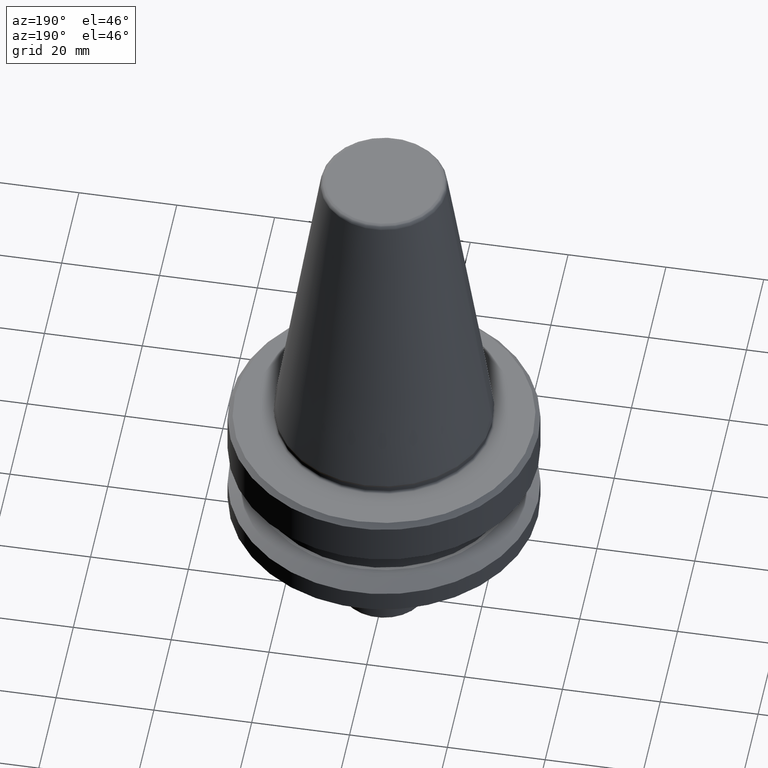
[diagram: clean part render]
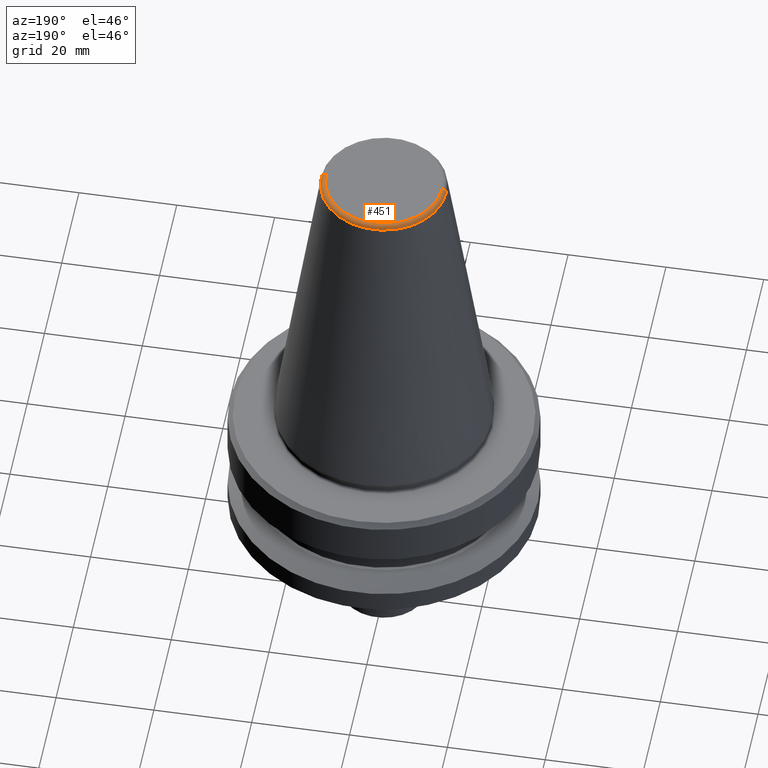
[diagram: same view with one face highlighted and labeled with its STEP entity id]
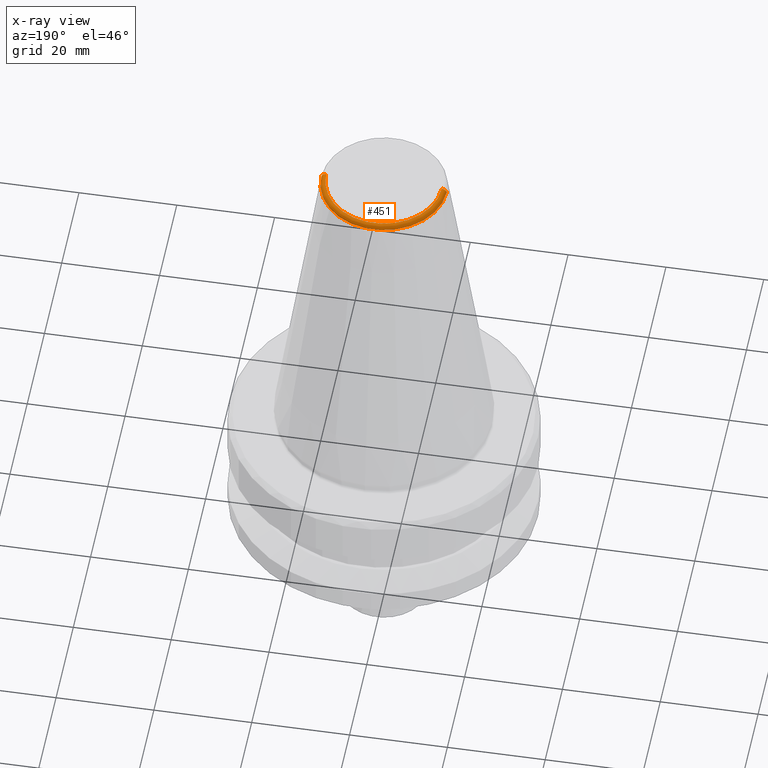
[diagram: x-ray of the same camera — body ghosted, the highlighted face saturated]
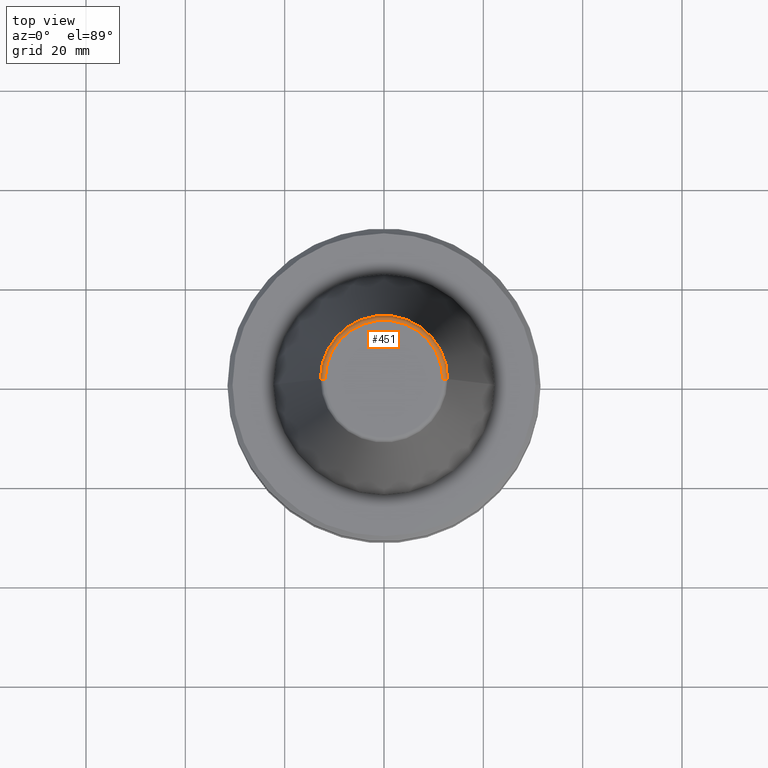
[diagram: same view with one face highlighted and labeled with its STEP entity id]
A machine part, auxiliary view. The second image highlights one B-rep face of the part: STEP entity #451.
The next image is the same camera in x-ray: the body ghosted, the highlighted face saturated — about 0% of this face is hidden behind the body in this view.
A second angle (top view) of the same face is appended — the face is thin or edge-on in the first view.
In plain terms, the highlighted toroidal blend (fillet) surface has major radius 11.8227 mm and minor (blend) radius 1 mm.
Its self-contained STEP definition (entity closure, byte-faithful):
#30 = VERTEX_POINT ( 'NONE', #804 ) ;
#38 = ORIENTED_EDGE ( 'NONE', *, *, #589, .T. ) ;
#70 = CIRCLE ( 'NONE', #895, 0.9999999999999696900 ) ;
#100 = DIRECTION ( 'NONE',  ( -0.0000000000000000000, -0.0000000000000000000, 1.000000000000000000 ) ) ;
#131 = DIRECTION ( 'NONE',  ( 1.000000000000000000, 0.0000000000000000000, 0.0000000000000000000 ) ) ;
#155 = ORIENTED_EDGE ( 'NONE', *, *, #164, .T. ) ;
#162 = CARTESIAN_POINT ( 'NONE',  ( 12.81220206925736900, 2.145409868259749100E-015, -0.8556918111122247000 ) ) ;
#164 = EDGE_CURVE ( 'NONE', #271, #30, #70, .T. ) ;
#168 = AXIS2_PLACEMENT_3D ( 'NONE', #816, #100, #131 ) ;
#192 = FACE_OUTER_BOUND ( 'NONE', #1037, .T. ) ;
#212 = TOROIDAL_SURFACE ( 'NONE', #315, 11.82266927716813000, 0.9999999999999696900 ) ;
#222 = CARTESIAN_POINT ( 'NONE',  ( 0.0000000000000000000, 0.0000000000000000000, -0.8556918111122247000 ) ) ;
#271 = VERTEX_POINT ( 'NONE', #918 ) ;
#315 = AXIS2_PLACEMENT_3D ( 'NONE', #577, #533, #861 ) ;
#338 = VERTEX_POINT ( 'NONE', #162 ) ;
#344 = AXIS2_PLACEMENT_3D ( 'NONE', #472, #1005, #479 ) ;
#369 = CIRCLE ( 'NONE', #912, 12.81220206925736900 ) ;
#421 = VERTEX_POINT ( 'NONE', #769 ) ;
#451 = ADVANCED_FACE ( 'NONE', ( #192 ), #212, .T. ) ;
#472 = CARTESIAN_POINT ( 'NONE',  ( 11.82266927716813000, 0.0000000000000000000, -1.000000000000334000 ) ) ;
#479 = DIRECTION ( 'NONE',  ( 0.0000000000000000000, 0.0000000000000000000, -1.000000000000000000 ) ) ;
#533 = DIRECTION ( 'NONE',  ( -0.0000000000000000000, -0.0000000000000000000, 1.000000000000000000 ) ) ;
#577 = CARTESIAN_POINT ( 'NONE',  ( 0.0000000000000000000, 0.0000000000000000000, -1.000000000000334000 ) ) ;
#589 = EDGE_CURVE ( 'NONE', #338, #271, #369, .T. ) ;
#614 = DIRECTION ( 'NONE',  ( -1.000000000000000000, 1.224646799147353000E-016, 0.0000000000000000000 ) ) ;
#657 = DIRECTION ( 'NONE',  ( 1.224646799147353200E-016, 1.000000000000000000, 0.0000000000000000000 ) ) ;
#669 = EDGE_CURVE ( 'NONE', #338, #421, #947, .T. ) ;
#692 = DIRECTION ( 'NONE',  ( 1.000000000000000000, 0.0000000000000000000, 0.0000000000000000000 ) ) ;
#769 = CARTESIAN_POINT ( 'NONE',  ( 11.82266927716813000, 0.0000000000000000000, -4.440892098500626200E-013 ) ) ;
#785 = EDGE_CURVE ( 'NONE', #421, #30, #1023, .T. ) ;
#804 = CARTESIAN_POINT ( 'NONE',  ( -11.82266927716813000, 1.508450817090336800E-015, -4.440892098500626200E-013 ) ) ;
#816 = CARTESIAN_POINT ( 'NONE',  ( 0.0000000000000000000, 0.0000000000000000000, -4.440892098500626200E-013 ) ) ;
#834 = CARTESIAN_POINT ( 'NONE',  ( -11.82266927716813000, 1.447859408766170200E-015, -1.000000000000334000 ) ) ;
#837 = ORIENTED_EDGE ( 'NONE', *, *, #785, .F. ) ;
#861 = DIRECTION ( 'NONE',  ( 1.000000000000000000, 0.0000000000000000000, 0.0000000000000000000 ) ) ;
#895 = AXIS2_PLACEMENT_3D ( 'NONE', #834, #657, #614 ) ;
#912 = AXIS2_PLACEMENT_3D ( 'NONE', #222, #949, #692 ) ;
#918 = CARTESIAN_POINT ( 'NONE',  ( -12.81220206925736900, 0.0000000000000000000, -0.8556918111122247000 ) ) ;
#945 = ORIENTED_EDGE ( 'NONE', *, *, #669, .F. ) ;
#947 = CIRCLE ( 'NONE', #344, 0.9999999999999696900 ) ;
#949 = DIRECTION ( 'NONE',  ( -0.0000000000000000000, -0.0000000000000000000, 1.000000000000000000 ) ) ;
#1005 = DIRECTION ( 'NONE',  ( 0.0000000000000000000, -1.000000000000000000, 0.0000000000000000000 ) ) ;
#1023 = CIRCLE ( 'NONE', #168, 11.82266927716813000 ) ;
#1037 = EDGE_LOOP ( 'NONE', ( #38, #155, #837, #945 ) ) ;